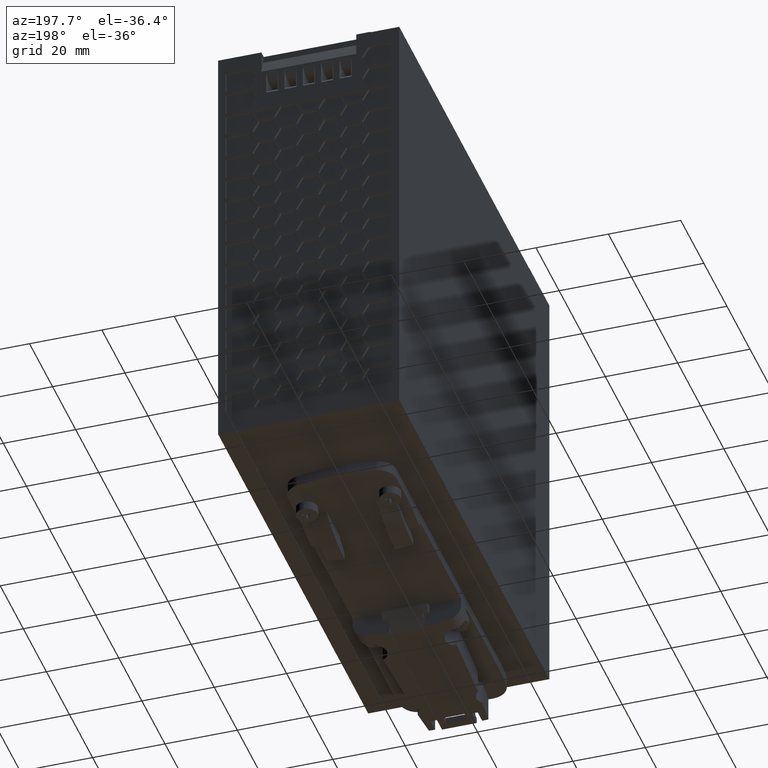
[diagram: clean part render]
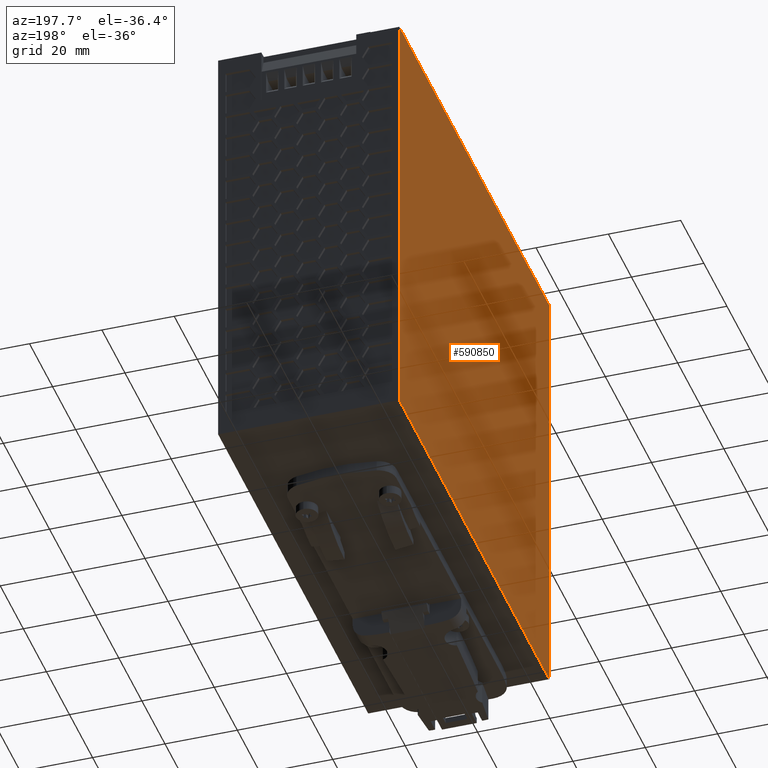
[diagram: same view with one face highlighted and labeled with its STEP entity id]
A machine part, auxiliary view. The second image highlights one B-rep face of the part: STEP entity #590850.
In plain terms, the highlighted planar face has unit normal (-1, 0, -0).
Its self-contained STEP definition (entity closure, byte-faithful):
#120=CARTESIAN_POINT('',(-14.06,-0.0999999999988432,-0.800000000000011))
;
#130=VERTEX_POINT('',#120);
#160=CARTESIAN_POINT('',(-14.06,-0.0999999999988432,0.));
#170=DIRECTION('',(0.,0.,1.));
#180=VECTOR('',#170,1.);
#190=LINE('',#160,#180);
#200=CARTESIAN_POINT('',(-14.06,-0.0999999999988432,129.2));
#210=VERTEX_POINT('',#200);
#220=EDGE_CURVE('',#130,#210,#190,.T.);
#261880=CARTESIAN_POINT('',(-14.06,0.,111.599161102275));
#261890=DIRECTION('',(0.,-1.,1.32377063674843E-39));
#261900=VECTOR('',#261890,1.);
#261910=LINE('',#261880,#261900);
#261920=CARTESIAN_POINT('',(-14.06,122.150000000001,111.599161102275));
#261930=VERTEX_POINT('',#261920);
#261940=CARTESIAN_POINT('',(-14.06,122.,111.599161102275));
#261950=VERTEX_POINT('',#261940);
#261960=EDGE_CURVE('',#261930,#261950,#261910,.T.);
#505990=CARTESIAN_POINT('',(-14.06,122.150000000001,129.2));
#506000=VERTEX_POINT('',#505990);
#506030=CARTESIAN_POINT('',(-14.06,122.150000000001,0.));
#506040=DIRECTION('',(0.,0.,-1.));
#506050=VECTOR('',#506040,1.);
#506060=LINE('',#506030,#506050);
#506070=EDGE_CURVE('',#506000,#261930,#506060,.T.);
#545510=CARTESIAN_POINT('',(-14.06,122.,-0.800000000000011));
#545520=VERTEX_POINT('',#545510);
#545550=CARTESIAN_POINT('',(-14.06,0.,-0.800000000000011));
#545560=DIRECTION('',(0.,1.,0.));
#545570=VECTOR('',#545560,1.);
#545580=LINE('',#545550,#545570);
#545590=EDGE_CURVE('',#130,#545520,#545580,.T.);
#583630=CARTESIAN_POINT('',(-14.06,122.,0.));
#583640=DIRECTION('',(0.,0.,-1.));
#583650=VECTOR('',#583640,1.);
#583660=LINE('',#583630,#583650);
#583670=EDGE_CURVE('',#261950,#545520,#583660,.T.);
#590670=CARTESIAN_POINT('',(-14.06,120.400000000001,0.));
#590680=DIRECTION('',(-1.,0.,0.));
#590690=DIRECTION('',(0.,-1.,0.));
#590700=AXIS2_PLACEMENT_3D('',#590670,#590680,#590690);
#590710=PLANE('',#590700);
#590720=CARTESIAN_POINT('',(-14.06,0.,129.2));
#590730=DIRECTION('',(0.,-1.,0.));
#590740=VECTOR('',#590730,1.);
#590750=LINE('',#590720,#590740);
#590760=EDGE_CURVE('',#506000,#210,#590750,.T.);
#590770=ORIENTED_EDGE('',*,*,#590760,.F.);
#590780=ORIENTED_EDGE('',*,*,#220,.T.);
#590790=ORIENTED_EDGE('',*,*,#545590,.F.);
#590800=ORIENTED_EDGE('',*,*,#583670,.T.);
#590810=ORIENTED_EDGE('',*,*,#261960,.T.);
#590820=ORIENTED_EDGE('',*,*,#506070,.T.);
#590830=EDGE_LOOP('',(#590820,#590810,#590800,#590790,#590780,#590770));
#590840=FACE_OUTER_BOUND('',#590830,.T.);
#590850=ADVANCED_FACE('',(#590840),#590710,.T.);